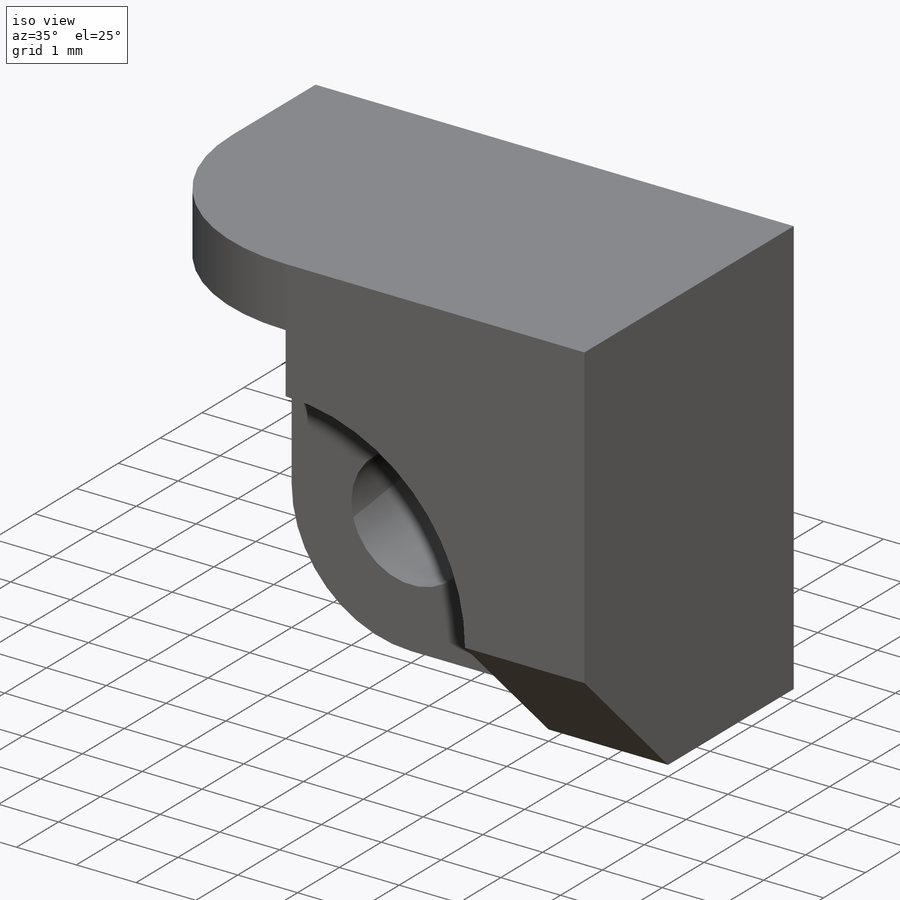
[diagram: iso view]
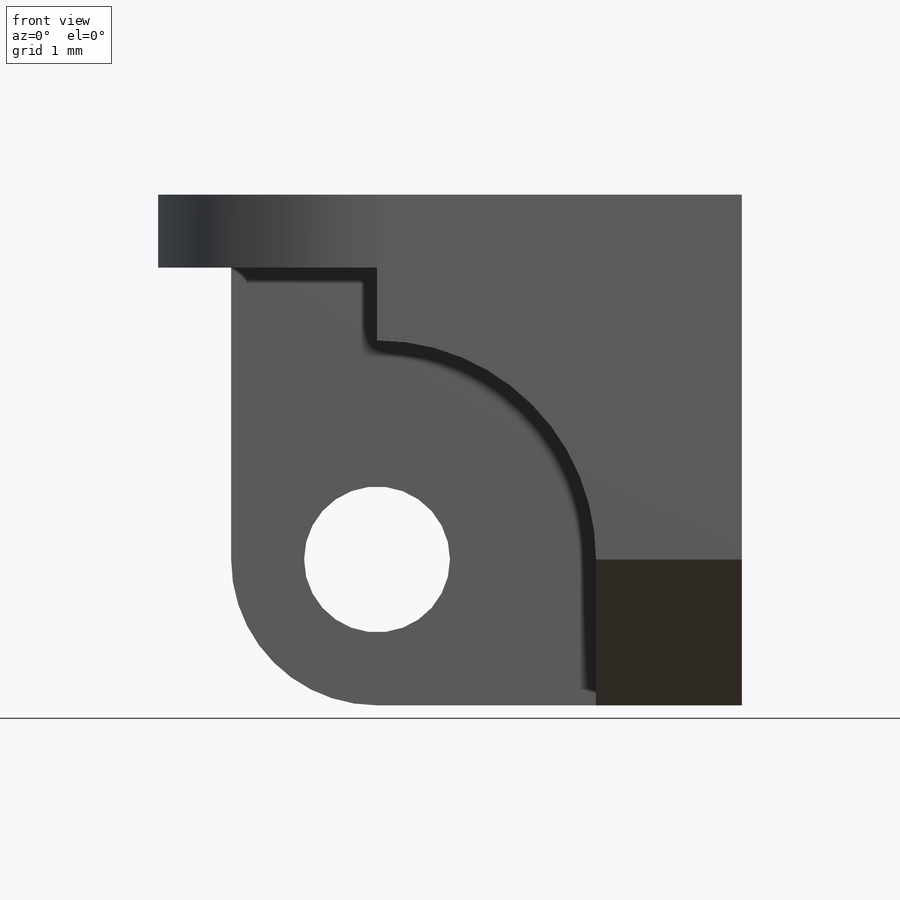
[diagram: front view]
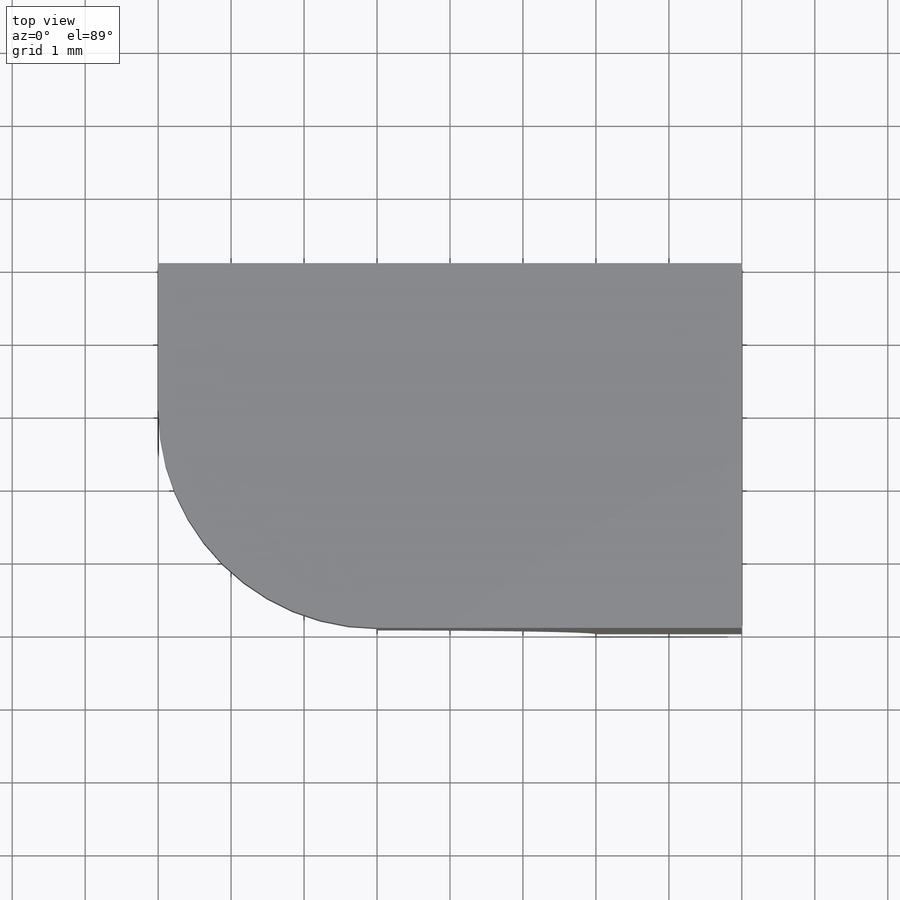
[diagram: top view]
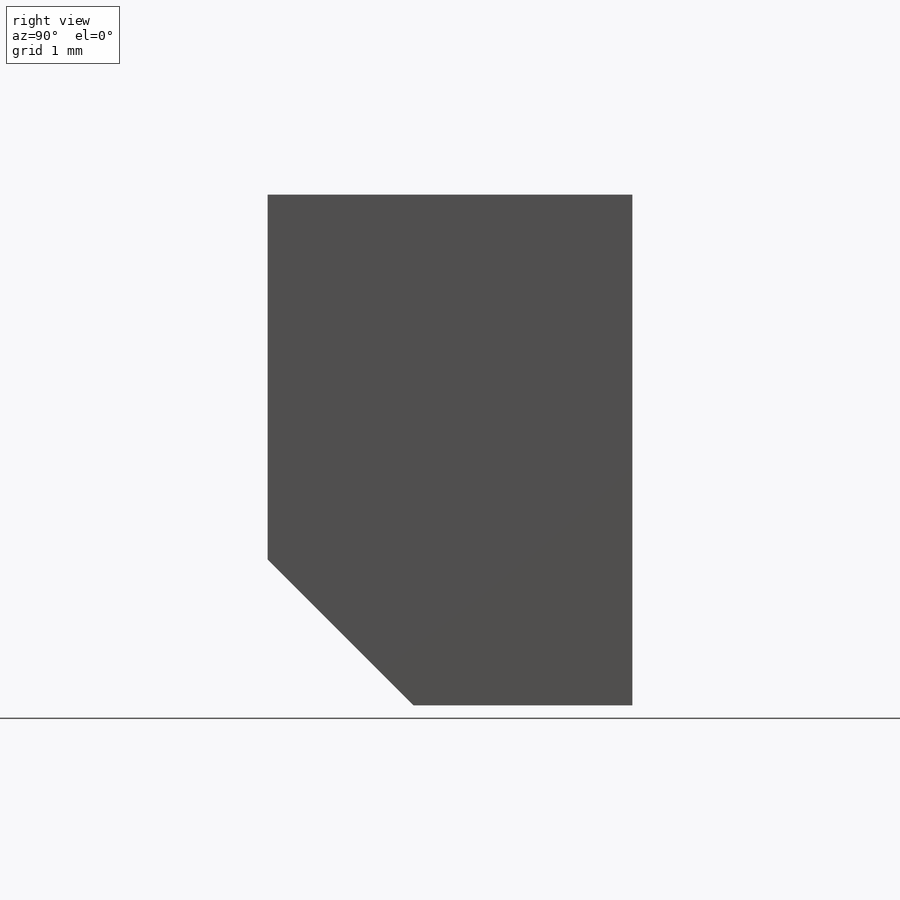
[diagram: right view]
SOLIDWORKS PART (.sldprt)
format: sldprt  version: not decoded by parser v0  size: 168,448 bytes
history: native  units: mm
features: sketch x4, cut_extrude x3, material x1, extrude x1 (+13 scaffold rows collapsed)
feature tree (22):
  scaffold x13  (default folders/planes/origin — collapsed)
  material  "Material <not specified>"
  sketch  "Sketch1"  dims[D1=2.0mm D2=2.0mm D3=4.0mm D4=1.0mm D5=5.0mm D6=7.0mm D7=1.0mm]
  extrude  "Boss-Extrude1"  Depth=5mm
  sketch  "Sketch2"  dims[D1=2.0mm D2=2.0mm D3=2.0mm D4=1.0mm]
  cut_extrude  "Cut-Extrude1"  Depth=3mm
  sketch  "Sketch3"
  cut_extrude  "Cut-Extrude2"  Depth=3mm
  sketch  "Sketch4"  dims[D1=1.0mm]
  cut_extrude  "Cut-Extrude3"  [1 undecoded]
decode coverage: 6 of 8 modeling features carry decoded parameters
note: 1 parameter value undecoded
note: suppression state not decoded; provenance and decode notes live in map.json
